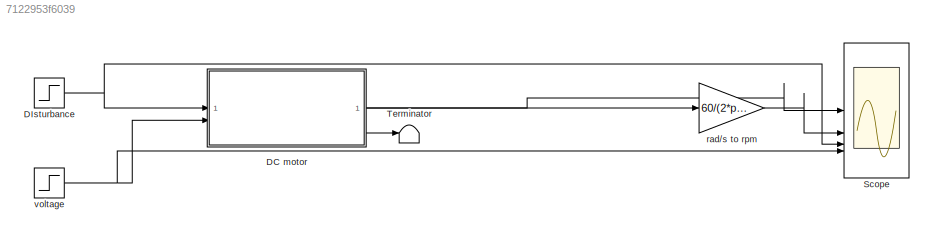
MODEL slx_7122953f6039
KIND model
CONFIG AbsTol = auto
CONFIG EnableMultiTasking = off
CONFIG FixedStep = 0.0001
CONFIG MaxStep = auto
CONFIG MinStep = auto
CONFIG RelTol = 1e-3
CONFIG SampleTimeConstraint = Unconstrained
CONFIG SolverName = FixedStepAuto
CONFIG StartTime = 0.0
CONFIG StopTime = 5
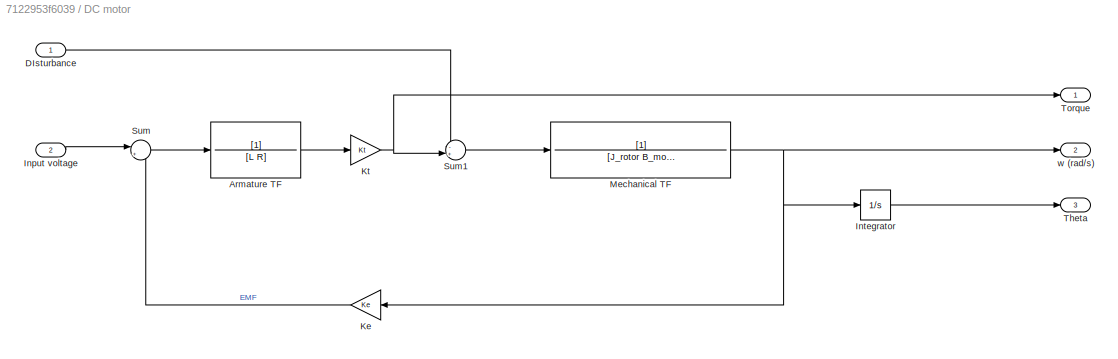
BLOCK [SubSystem] DC motor
BLOCK [TransferFcn] DC motor/Armature TF
  Denominator = [L R]
BLOCK [Inport] DC motor/DIsturbance
BLOCK [Inport] DC motor/Input voltage
  Port = 2
BLOCK [Integrator] DC motor/Integrator
BLOCK [Gain] DC motor/Ke
  Gain = Ke
BLOCK [Gain] DC motor/Kt
  Gain = Kt
BLOCK [TransferFcn] DC motor/Mechanical TF
  Denominator = [J_rotor B_motor]
BLOCK [Sum] DC motor/Sum
  Inputs = |+-
BLOCK [Sum] DC motor/Sum1
  Inputs = -+|
BLOCK [Outport] DC motor/Theta
  Port = 3
BLOCK [Outport] DC motor/Torque
BLOCK [Outport] DC motor/w (rad//s)
  Port = 2
BLOCK [Step] DIsturbance
  After = 5
  SampleTime = 0
  Time = 2.5
BLOCK [Scope] Scope
  Floating = off
  NumInputPorts = 4
  ScopeSpecificationString = Simulink.scopes.TimeScopeBlockCfg('CurrentConfiguration', extmgr.ConfigurationSet(extmgr.Configuration('Core','General UI',true),extmgr.Configuration('Core','Source UI',true),extmgr.Configuration('Sources','WiredSimulink',true),extmgr.Configuration('Visuals','Time Domain',true,'SerializedDisplays',{struct('MinYLimReal','-0.62062','MaxYLimReal','5.58555','YLabelReal','Torque (Nm)','MinYLimMag','0.0...<+3453ch>
BLOCK [Terminator] Terminator
BLOCK [Gain] rad//s to rpm
  Gain = 60/(2*pi)
BLOCK [Step] voltage
  After = 12
  SampleTime = 0
  Time = 2
LINE DC motor/Armature TF:1 -> DC motor/Kt:1
LINE DC motor/DIsturbance:1 -> DC motor/Sum1:1
LINE DC motor/Input voltage:1 -> DC motor/Sum:1
LINE DC motor/Integrator:1 -> DC motor/Theta:1
LINE DC motor/Ke:1 -> DC motor/Sum:2
NET DC motor/Kt:1 -> DC motor/Sum1:2, DC motor/Torque:1
NET DC motor/Mechanical TF:1 -> DC motor/Integrator:1, DC motor/Ke:1, DC motor/w (rad//s):1
LINE DC motor/Sum1:1 -> DC motor/Mechanical TF:1
LINE DC motor/Sum:1 -> DC motor/Armature TF:1
LINE DC motor:1 -> Scope:1
LINE DC motor:2 -> rad//s to rpm:1
LINE DC motor:3 -> Terminator:1
NET DIsturbance:1 -> DC motor:1, Scope:3
LINE rad//s to rpm:1 -> Scope:2
NET voltage:1 -> DC motor:2, Scope:4
note: NET lines group one-source signal fan-out (src -> all destinations, sorted); 1:1 wires keep LINE
